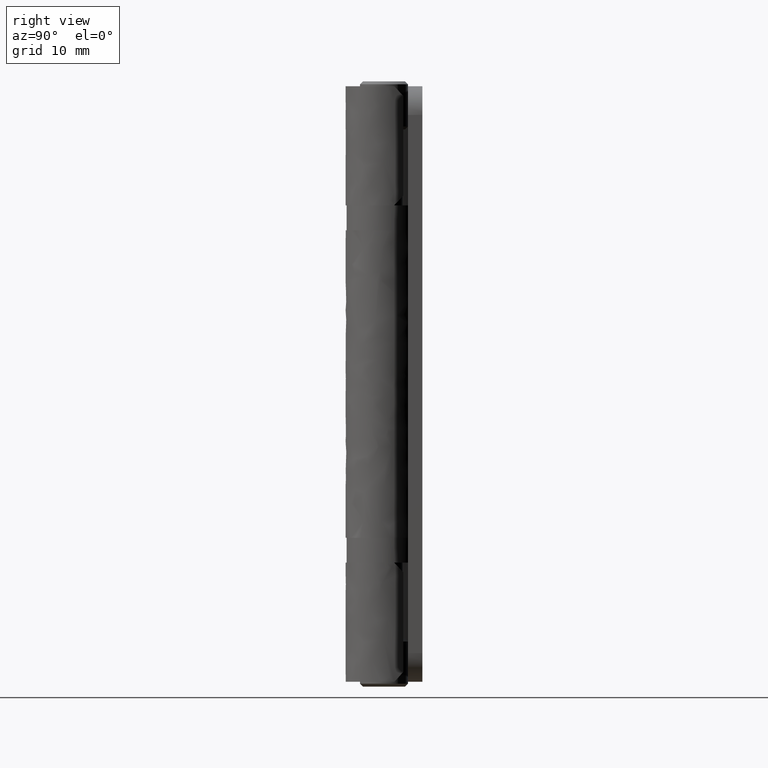
[diagram: clean part render]
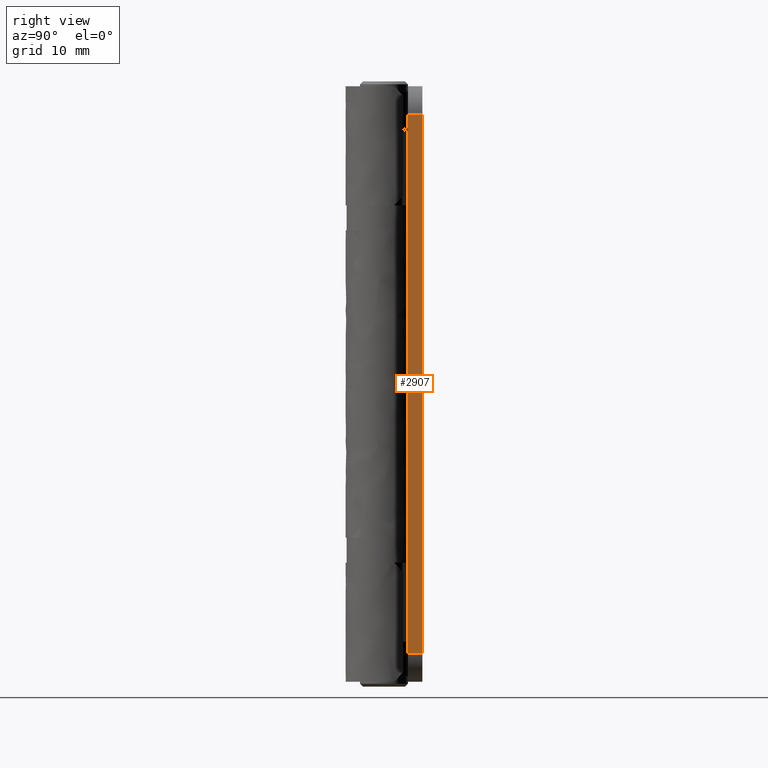
[diagram: same view with one face highlighted and labeled with its STEP entity id]
A machine part, right view. The second image highlights one B-rep face of the part: STEP entity #2907.
In plain terms, the highlighted face is a freeform B-spline surface patch.
Its self-contained STEP definition (entity closure, byte-faithful):
#2872=CARTESIAN_POINT('',(21.000000000000249,2.425075002907852,0.202800108538863));
#2873=CARTESIAN_POINT('',(21.000000000000249,2.425075002907852,61.797201393498177));
#2874=CARTESIAN_POINT('',(21.000000000000249,4.074925037326593,0.202800108538863));
#2875=CARTESIAN_POINT('',(21.000000000000249,4.074925037326593,61.797201393498177));
#2876=B_SPLINE_SURFACE_WITH_KNOTS('',1,1,((#2872,#2874),(#2873,#2875)),.UNSPECIFIED.,.F.,.F.,.U.,(2,2),(2,2),(0.0,61.594401284959311),(0.041708334948495,0.958291687403247),.UNSPECIFIED.);
#2877=CARTESIAN_POINT('',(21.000000000000249,4.000000000000740,59.0));
#2878=VERTEX_POINT('',#2877);
#2879=CARTESIAN_POINT('',(21.000000000000249,4.000000000000740,3.0));
#2880=VERTEX_POINT('',#2879);
#2881=CARTESIAN_POINT('',(21.000000000000249,4.000000000000740,59.0));
#2882=CARTESIAN_POINT('',(21.000000000000249,4.000000000000740,3.0));
#2883=QUASI_UNIFORM_CURVE('',1,(#2881,#2882),.UNSPECIFIED.,.F.,.U.);
#2884=EDGE_CURVE('',#2878,#2880,#2883,.T.);
#2885=ORIENTED_EDGE('',*,*,#2884,.F.);
#2886=CARTESIAN_POINT('',(21.0,2.500000000000570,59.0));
#2887=VERTEX_POINT('',#2886);
#2888=CARTESIAN_POINT('',(21.000000000000249,4.000000000000740,59.0));
#2889=CARTESIAN_POINT('',(21.0,2.500000000000570,59.0));
#2890=QUASI_UNIFORM_CURVE('',1,(#2888,#2889),.UNSPECIFIED.,.F.,.U.);
#2891=EDGE_CURVE('',#2878,#2887,#2890,.T.);
#2892=ORIENTED_EDGE('',*,*,#2891,.T.);
#2893=CARTESIAN_POINT('',(21.0,2.500000000000570,3.0));
#2894=VERTEX_POINT('',#2893);
#2895=CARTESIAN_POINT('',(21.0,2.500000000000570,59.0));
#2896=CARTESIAN_POINT('',(21.0,2.500000000000570,3.0));
#2897=QUASI_UNIFORM_CURVE('',1,(#2895,#2896),.UNSPECIFIED.,.F.,.U.);
#2898=EDGE_CURVE('',#2887,#2894,#2897,.T.);
#2899=ORIENTED_EDGE('',*,*,#2898,.T.);
#2900=CARTESIAN_POINT('',(21.0,2.500000000000570,3.0));
#2901=CARTESIAN_POINT('',(21.000000000000249,4.000000000000740,3.0));
#2902=QUASI_UNIFORM_CURVE('',1,(#2900,#2901),.UNSPECIFIED.,.F.,.U.);
#2903=EDGE_CURVE('',#2894,#2880,#2902,.T.);
#2904=ORIENTED_EDGE('',*,*,#2903,.T.);
#2905=EDGE_LOOP('',(#2885,#2892,#2899,#2904));
#2906=FACE_OUTER_BOUND('',#2905,.T.);
#2907=ADVANCED_FACE('',(#2906),#2876,.F.);